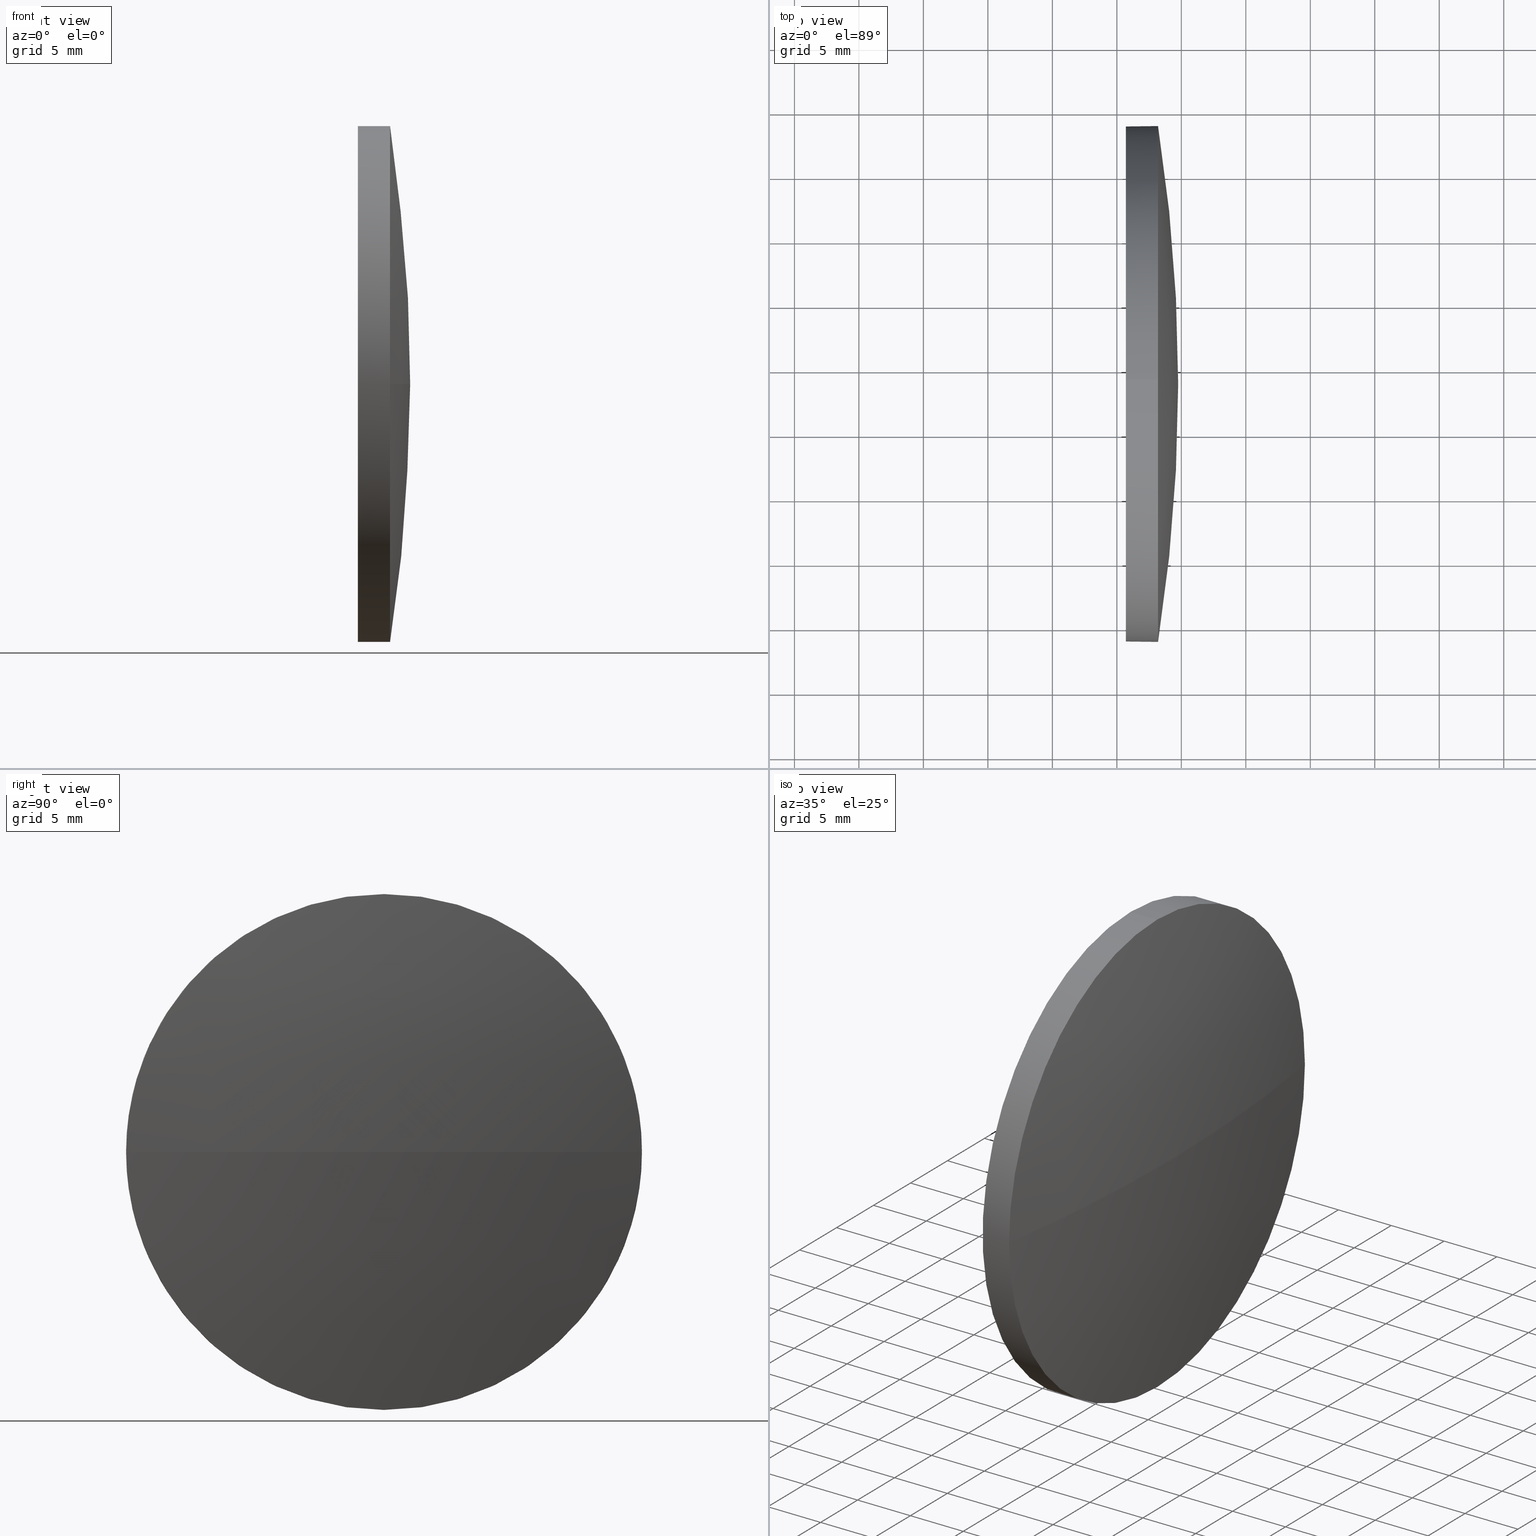
[diagram: canonical four-view strip — front | top / right | iso, engineering-drawing reading convention]
A machine part, canonical four-view strip (front | top / right | iso — engineering-drawing reading convention). The complete STEP part file that produces these views, byte-faithful:
ISO-10303-21;
HEADER;
FILE_DESCRIPTION (( 'STEP AP214' ),
    '1' );
FILE_NAME ('100234.STEP',
    '2019-05-28T05:46:53',
    ( '' ),
    ( '' ),
    'SwSTEP 2.0',
    'SolidWorks 2016',
    '' );
FILE_SCHEMA (( 'AUTOMOTIVE_DESIGN' ));
ENDSEC;

DATA;
#1 = ORIENTED_EDGE ( 'NONE', *, *, #70, .T. ) ;
#2 = ADVANCED_FACE ( 'NONE', ( #153 ), #62, .F. ) ;
#3 = AXIS2_PLACEMENT_3D ( 'NONE', #123, #30, #113 ) ;
#4 = ORIENTED_EDGE ( 'NONE', *, *, #48, .T. ) ;
#5 = CARTESIAN_POINT ( 'NONE',  ( 393.1958291310484700, 28.77305965944879100, 0.0000000000000000000 ) ) ;
#6 = CARTESIAN_POINT ( 'NONE',  ( 265.7707009259203200, 28.77305965944876200, 0.0000000000000000000 ) ) ;
#7 = ORIENTED_EDGE ( 'NONE', *, *, #58, .T. ) ;
#8 = DIRECTION ( 'NONE',  ( 0.0000000000000000000, 1.000000000000000000, 0.0000000000000000000 ) ) ;
#9 = CARTESIAN_POINT ( 'NONE',  ( 0.0000000000000000000, 0.0000000000000000000, 0.0000000000000000000 ) ) ;
#10 = CIRCLE ( 'NONE', #114, 20.00000000000000400 ) ;
#11 = APPLICATION_PROTOCOL_DEFINITION ( 'draft international standard', 'automotive_design', 1998, #39 ) ;
#12 = PRODUCT_DEFINITION_FORMATION_WITH_SPECIFIED_SOURCE ( '�κ�', '', #105, .NOT_KNOWN. ) ;
#13 = EDGE_CURVE ( 'NONE', #117, #54, #173, .T. ) ;
#14 = SURFACE_STYLE_FILL_AREA ( #160 ) ;
#15 = PRESENTATION_STYLE_ASSIGNMENT (( #56 ) ) ;
#16 = CARTESIAN_POINT ( 'NONE',  ( 393.1958291310484700, 28.77305965944879100, 0.0000000000000000000 ) ) ;
#17 = ORIENTED_EDGE ( 'NONE', *, *, #26, .F. ) ;
#18 = FACE_OUTER_BOUND ( 'NONE', #81, .T. ) ;
#19 = DIRECTION ( 'NONE',  ( 0.0000000000000000000, 0.0000000000000000000, 1.000000000000000000 ) ) ;
#20 = SURFACE_STYLE_USAGE ( .BOTH. , #53 ) ;
#21 = ORIENTED_EDGE ( 'NONE', *, *, #129, .F. ) ;
#22 = CARTESIAN_POINT ( 'NONE',  ( 394.7558291310484700, 28.77305965944876900, 0.0000000000000000000 ) ) ;
#23 = ADVANCED_BREP_SHAPE_REPRESENTATION ( '100234', ( #115, #104 ), #136 ) ;
#24 = DIRECTION ( 'NONE',  ( -1.000000000000000000, -0.0000000000000000000, -0.0000000000000000000 ) ) ;
#25 = CARTESIAN_POINT ( 'NONE',  ( 265.7707009259203200, 28.77305965944876200, 0.0000000000000000000 ) ) ;
#26 = EDGE_CURVE ( 'NONE', #132, #162, #126, .T. ) ;
#27 = CARTESIAN_POINT ( 'NONE',  ( 390.6958291310484700, 28.77305965944879100, 0.0000000000000000000 ) ) ;
#28 = PRESENTATION_LAYER_ASSIGNMENT (  '', '', ( #40 ) ) ;
#29 =( NAMED_UNIT ( * ) SI_UNIT ( $, .STERADIAN. ) SOLID_ANGLE_UNIT ( ) );
#30 = DIRECTION ( 'NONE',  ( 0.0000000000000000000, 1.224646799147353200E-016, -1.000000000000000000 ) ) ;
#31 = ORIENTED_EDGE ( 'NONE', *, *, #168, .F. ) ;
#32 =( GEOMETRIC_REPRESENTATION_CONTEXT ( 3 ) GLOBAL_UNCERTAINTY_ASSIGNED_CONTEXT ( ( #128 ) ) GLOBAL_UNIT_ASSIGNED_CONTEXT ( ( #95, #52, #38 ) ) REPRESENTATION_CONTEXT ( 'NONE', 'WORKASPACE' ) );
#33 = ORIENTED_EDGE ( 'NONE', *, *, #168, .T. ) ;
#34 = CIRCLE ( 'NONE', #186, 20.00000000000000400 ) ;
#35 = DIRECTION ( 'NONE',  ( -1.000000000000000000, -0.0000000000000000000, -0.0000000000000000000 ) ) ;
#36 = AXIS2_PLACEMENT_3D ( 'NONE', #137, #158, #74 ) ;
#37 = DIRECTION ( 'NONE',  ( 0.0000000000000000000, 0.0000000000000000000, 1.000000000000000000 ) ) ;
#38 =( NAMED_UNIT ( * ) SI_UNIT ( $, .STERADIAN. ) SOLID_ANGLE_UNIT ( ) );
#39 = APPLICATION_CONTEXT ( 'automotive_design' ) ;
#40 = STYLED_ITEM ( 'NONE', ( #144 ), #115 ) ;
#41 = DIRECTION ( 'NONE',  ( 0.0000000000000000000, 0.0000000000000000000, 1.000000000000000000 ) ) ;
#42 = ORIENTED_EDGE ( 'NONE', *, *, #172, .T. ) ;
#43 = MECHANICAL_DESIGN_GEOMETRIC_PRESENTATION_REPRESENTATION (  '', ( #40 ), #32 ) ;
#44 = ORIENTED_EDGE ( 'NONE', *, *, #13, .T. ) ;
#45 = VECTOR ( 'NONE', #35, 1000.000000000000000 ) ;
#46 = PRESENTATION_LAYER_ASSIGNMENT (  '', '', ( #147 ) ) ;
#47 = ADVANCED_FACE ( 'NONE', ( #131 ), #71, .T. ) ;
#48 = EDGE_CURVE ( 'NONE', #91, #132, #34, .T. ) ;
#49 = CIRCLE ( 'NONE', #86, 20.00000000000000400 ) ;
#50 = DIRECTION ( 'NONE',  ( -0.0000000000000000000, 0.0000000000000000000, 1.000000000000000000 ) ) ;
#51 = CARTESIAN_POINT ( 'NONE',  ( 386.7308755200624500, 28.77305965944879100, 0.0000000000000000000 ) ) ;
#52 =( NAMED_UNIT ( * ) PLANE_ANGLE_UNIT ( ) SI_UNIT ( $, .RADIAN. ) );
#53 = SURFACE_SIDE_STYLE ('',( #14 ) ) ;
#54 = VERTEX_POINT ( 'NONE', #61 ) ;
#55 = PRODUCT_CONTEXT ( 'NONE', #69, 'mechanical' ) ;
#56 = SURFACE_STYLE_USAGE ( .BOTH. , #145 ) ;
#57 = COLOUR_RGB ( '',1.000000000000000000, 1.000000000000000000, 1.000000000000000000 ) ;
#58 = EDGE_CURVE ( 'NONE', #162, #54, #10, .T. ) ;
#59 = VERTEX_POINT ( 'NONE', #93 ) ;
#60 = FACE_OUTER_BOUND ( 'NONE', #73, .T. ) ;
#61 = CARTESIAN_POINT ( 'NONE',  ( 393.1958291310484700, 48.77305965944879800, 0.0000000000000000000 ) ) ;
#62 = PLANE ( 'NONE',  #36 ) ;
#63 = ORIENTED_EDGE ( 'NONE', *, *, #48, .F. ) ;
#64 = CYLINDRICAL_SURFACE ( 'NONE', #77, 20.00000000000000400 ) ;
#65 = DIRECTION ( 'NONE',  ( 0.0000000000000000000, 0.0000000000000000000, 1.000000000000000000 ) ) ;
#66 = PRODUCT_RELATED_PRODUCT_CATEGORY ( 'part', '', ( #105 ) ) ;
#67 = DIRECTION ( 'NONE',  ( -1.000000000000000000, -0.0000000000000000000, -0.0000000000000000000 ) ) ;
#68 = AXIS2_PLACEMENT_3D ( 'NONE', #150, #80, #8 ) ;
#69 = APPLICATION_CONTEXT ( 'automotive_design' ) ;
#70 = EDGE_CURVE ( 'NONE', #156, #59, #139, .T. ) ;
#71 = CYLINDRICAL_SURFACE ( 'NONE', #154, 20.00000000000000400 ) ;
#72 = ADVANCED_FACE ( 'NONE', ( #18 ), #64, .T. ) ;
#73 = EDGE_LOOP ( 'NONE', ( #130, #42, #63, #21 ) ) ;
#74 = DIRECTION ( 'NONE',  ( 0.0000000000000000000, 0.0000000000000000000, -1.000000000000000000 ) ) ;
#75 = PRODUCT_DEFINITION_SHAPE ( 'NONE', 'NONE',  #90 ) ;
#76 = DIRECTION ( 'NONE',  ( -1.000000000000000000, -0.0000000000000000000, -0.0000000000000000000 ) ) ;
#77 = AXIS2_PLACEMENT_3D ( 'NONE', #141, #110, #79 ) ;
#78 = CARTESIAN_POINT ( 'NONE',  ( 393.1958291310484700, 28.77305965944879100, 20.00000000000000400 ) ) ;
#79 = DIRECTION ( 'NONE',  ( 0.0000000000000000000, 0.0000000000000000000, 1.000000000000000000 ) ) ;
#80 = DIRECTION ( 'NONE',  ( -0.0000000000000000000, 0.0000000000000000000, -1.000000000000000000 ) ) ;
#81 = EDGE_LOOP ( 'NONE', ( #111, #89, #102, #31, #7 ) ) ;
#82 = DIRECTION ( 'NONE',  ( -1.000000000000000000, -0.0000000000000000000, -0.0000000000000000000 ) ) ;
#83 =( LENGTH_UNIT ( ) NAMED_UNIT ( * ) SI_UNIT ( .MILLI., .METRE. ) );
#84 = EDGE_LOOP ( 'NONE', ( #166, #4, #96, #33, #120 ) ) ;
#85 = ADVANCED_FACE ( 'NONE', ( #60 ), #163, .T. ) ;
#86 = AXIS2_PLACEMENT_3D ( 'NONE', #182, #180, #112 ) ;
#87 = ORIENTED_EDGE ( 'NONE', *, *, #58, .F. ) ;
#88 = CIRCLE ( 'NONE', #3, 128.9851282051281500 ) ;
#89 = ORIENTED_EDGE ( 'NONE', *, *, #146, .T. ) ;
#90 = PRODUCT_DEFINITION ( 'δ֪', '', #12, #179 ) ;
#91 = VERTEX_POINT ( 'NONE', #125 ) ;
#92 = CIRCLE ( 'NONE', #185, 20.00000000000000400 ) ;
#93 = CARTESIAN_POINT ( 'NONE',  ( 390.6958291310484700, 28.77305965944879100, 20.00000000000000400 ) ) ;
#94 = FILL_AREA_STYLE_COLOUR ( '', #57 ) ;
#95 =( LENGTH_UNIT ( ) NAMED_UNIT ( * ) SI_UNIT ( .MILLI., .METRE. ) );
#96 = ORIENTED_EDGE ( 'NONE', *, *, #26, .T. ) ;
#97 =( NAMED_UNIT ( * ) SI_UNIT ( $, .STERADIAN. ) SOLID_ANGLE_UNIT ( ) );
#98 =( NAMED_UNIT ( * ) PLANE_ANGLE_UNIT ( ) SI_UNIT ( $, .RADIAN. ) );
#99 = EDGE_LOOP ( 'NONE', ( #100, #44, #87, #17 ) ) ;
#100 = ORIENTED_EDGE ( 'NONE', *, *, #172, .F. ) ;
#101 = AXIS2_PLACEMENT_3D ( 'NONE', #5, #176, #19 ) ;
#102 = ORIENTED_EDGE ( 'NONE', *, *, #183, .F. ) ;
#103 = LINE ( 'NONE', #121, #45 ) ;
#104 = AXIS2_PLACEMENT_3D ( 'NONE', #9, #184, #127 ) ;
#105 = PRODUCT ( '100234', '100234', '', ( #55 ) ) ;
#106 = UNCERTAINTY_MEASURE_WITH_UNIT (LENGTH_MEASURE( 1.000000000000000100E-005 ), #143, 'distance_accuracy_value', 'NONE');
#107 = COLOUR_RGB ( '',1.000000000000000000, 1.000000000000000000, 1.000000000000000000 ) ;
#108 = CARTESIAN_POINT ( 'NONE',  ( 390.6958291310484700, 28.77305965944879400, -20.00000000000000400 ) ) ;
#109 = CARTESIAN_POINT ( 'NONE',  ( 386.7308755200624500, 28.77305965944879400, -20.00000000000000400 ) ) ;
#110 = DIRECTION ( 'NONE',  ( -1.000000000000000000, -0.0000000000000000000, -0.0000000000000000000 ) ) ;
#111 = ORIENTED_EDGE ( 'NONE', *, *, #129, .T. ) ;
#112 = DIRECTION ( 'NONE',  ( 0.0000000000000000000, 0.0000000000000000000, 1.000000000000000000 ) ) ;
#113 = DIRECTION ( 'NONE',  ( 0.0000000000000000000, 1.000000000000000000, 1.224646799147353200E-016 ) ) ;
#114 = AXIS2_PLACEMENT_3D ( 'NONE', #177, #82, #65 ) ;
#115 = MANIFOLD_SOLID_BREP ( '��ת1', #135 ) ;
#116 = FILL_AREA_STYLE ('',( #94 ) ) ;
#117 = VERTEX_POINT ( 'NONE', #22 ) ;
#118 = DIRECTION ( 'NONE',  ( -1.000000000000000000, -0.0000000000000000000, -0.0000000000000000000 ) ) ;
#119 = DIRECTION ( 'NONE',  ( 1.000000000000000000, 0.0000000000000000000, 0.0000000000000000000 ) ) ;
#120 = ORIENTED_EDGE ( 'NONE', *, *, #70, .F. ) ;
#121 = CARTESIAN_POINT ( 'NONE',  ( 386.7308755200624500, 28.77305965944879100, 20.00000000000000400 ) ) ;
#122 = SPHERICAL_SURFACE ( 'NONE', #149, 128.9851282051281500 ) ;
#123 = CARTESIAN_POINT ( 'NONE',  ( 265.7707009259203200, 28.77305965944876200, 0.0000000000000000000 ) ) ;
#124 = DIRECTION ( 'NONE',  ( 0.0000000000000000000, 0.0000000000000000000, 1.000000000000000000 ) ) ;
#125 = CARTESIAN_POINT ( 'NONE',  ( 393.1958291310484700, 28.77305965944879400, -20.00000000000000400 ) ) ;
#126 = CIRCLE ( 'NONE', #101, 20.00000000000000400 ) ;
#127 = DIRECTION ( 'NONE',  ( 1.000000000000000000, 0.0000000000000000000, 0.0000000000000000000 ) ) ;
#128 = UNCERTAINTY_MEASURE_WITH_UNIT (LENGTH_MEASURE( 1.000000000000000100E-005 ), #95, 'distance_accuracy_value', 'NONE');
#129 = EDGE_CURVE ( 'NONE', #54, #91, #49, .T. ) ;
#130 = ORIENTED_EDGE ( 'NONE', *, *, #13, .F. ) ;
#131 = FACE_OUTER_BOUND ( 'NONE', #84, .T. ) ;
#132 = VERTEX_POINT ( 'NONE', #159 ) ;
#133 = LINE ( 'NONE', #109, #167 ) ;
#134 = ADVANCED_FACE ( 'NONE', ( #157 ), #122, .T. ) ;
#135 = CLOSED_SHELL ( 'NONE', ( #72, #85, #134, #47, #2 ) ) ;
#136 =( GEOMETRIC_REPRESENTATION_CONTEXT ( 3 ) GLOBAL_UNCERTAINTY_ASSIGNED_CONTEXT ( ( #106 ) ) GLOBAL_UNIT_ASSIGNED_CONTEXT ( ( #143, #98, #97 ) ) REPRESENTATION_CONTEXT ( 'NONE', 'WORKASPACE' ) );
#137 = CARTESIAN_POINT ( 'NONE',  ( 390.6958291310484700, 28.77305965944879100, 0.0000000000000000000 ) ) ;
#138 = AXIS2_PLACEMENT_3D ( 'NONE', #6, #50, #119 ) ;
#139 = CIRCLE ( 'NONE', #164, 20.00000000000000400 ) ;
#140 = FILL_AREA_STYLE_COLOUR ( '', #107 ) ;
#141 = CARTESIAN_POINT ( 'NONE',  ( 386.7308755200624500, 28.77305965944879100, 0.0000000000000000000 ) ) ;
#142 = DIRECTION ( 'NONE',  ( -0.0000000000000000000, 0.0000000000000000000, -1.000000000000000000 ) ) ;
#143 =( LENGTH_UNIT ( ) NAMED_UNIT ( * ) SI_UNIT ( .MILLI., .METRE. ) );
#144 = PRESENTATION_STYLE_ASSIGNMENT (( #20 ) ) ;
#145 = SURFACE_SIDE_STYLE ('',( #178 ) ) ;
#146 = EDGE_CURVE ( 'NONE', #91, #156, #133, .T. ) ;
#147 = STYLED_ITEM ( 'NONE', ( #15 ), #23 ) ;
#148 = DIRECTION ( 'NONE',  ( 0.0000000000000000000, 1.000000000000000000, 0.0000000000000000000 ) ) ;
#149 = AXIS2_PLACEMENT_3D ( 'NONE', #25, #142, #148 ) ;
#150 = CARTESIAN_POINT ( 'NONE',  ( 265.7707009259203200, 28.77305965944876200, 0.0000000000000000000 ) ) ;
#151 = EDGE_LOOP ( 'NONE', ( #155, #1 ) ) ;
#152 = DIRECTION ( 'NONE',  ( -1.000000000000000000, -0.0000000000000000000, -0.0000000000000000000 ) ) ;
#153 = FACE_OUTER_BOUND ( 'NONE', #151, .T. ) ;
#154 = AXIS2_PLACEMENT_3D ( 'NONE', #51, #76, #174 ) ;
#155 = ORIENTED_EDGE ( 'NONE', *, *, #183, .T. ) ;
#156 = VERTEX_POINT ( 'NONE', #108 ) ;
#157 = FACE_OUTER_BOUND ( 'NONE', #99, .T. ) ;
#158 = DIRECTION ( 'NONE',  ( 1.000000000000000000, 0.0000000000000000000, 0.0000000000000000000 ) ) ;
#159 = CARTESIAN_POINT ( 'NONE',  ( 393.1958291310484700, 8.773059659448762200, -2.449293598294706100E-015 ) ) ;
#160 = FILL_AREA_STYLE ('',( #140 ) ) ;
#161 =( NAMED_UNIT ( * ) PLANE_ANGLE_UNIT ( ) SI_UNIT ( $, .RADIAN. ) );
#162 = VERTEX_POINT ( 'NONE', #78 ) ;
#163 = SPHERICAL_SURFACE ( 'NONE', #68, 128.9851282051281500 ) ;
#164 = AXIS2_PLACEMENT_3D ( 'NONE', #181, #67, #37 ) ;
#165 = APPLICATION_PROTOCOL_DEFINITION ( 'draft international standard', 'automotive_design', 1998, #69 ) ;
#166 = ORIENTED_EDGE ( 'NONE', *, *, #146, .F. ) ;
#167 = VECTOR ( 'NONE', #24, 1000.000000000000000 ) ;
#168 = EDGE_CURVE ( 'NONE', #162, #59, #103, .T. ) ;
#169 = SHAPE_DEFINITION_REPRESENTATION ( #75, #23 ) ;
#170 = UNCERTAINTY_MEASURE_WITH_UNIT (LENGTH_MEASURE( 1.000000000000000100E-005 ), #83, 'distance_accuracy_value', 'NONE');
#171 =( GEOMETRIC_REPRESENTATION_CONTEXT ( 3 ) GLOBAL_UNCERTAINTY_ASSIGNED_CONTEXT ( ( #170 ) ) GLOBAL_UNIT_ASSIGNED_CONTEXT ( ( #83, #161, #29 ) ) REPRESENTATION_CONTEXT ( 'NONE', 'WORKASPACE' ) );
#172 = EDGE_CURVE ( 'NONE', #117, #132, #88, .T. ) ;
#173 = CIRCLE ( 'NONE', #138, 128.9851282051281500 ) ;
#174 = DIRECTION ( 'NONE',  ( 0.0000000000000000000, 0.0000000000000000000, 1.000000000000000000 ) ) ;
#175 = MECHANICAL_DESIGN_GEOMETRIC_PRESENTATION_REPRESENTATION (  '', ( #147 ), #171 ) ;
#176 = DIRECTION ( 'NONE',  ( -1.000000000000000000, -0.0000000000000000000, -0.0000000000000000000 ) ) ;
#177 = CARTESIAN_POINT ( 'NONE',  ( 393.1958291310484700, 28.77305965944879100, 0.0000000000000000000 ) ) ;
#178 = SURFACE_STYLE_FILL_AREA ( #116 ) ;
#179 = PRODUCT_DEFINITION_CONTEXT ( 'detailed design', #39, 'design' ) ;
#180 = DIRECTION ( 'NONE',  ( -1.000000000000000000, -0.0000000000000000000, -0.0000000000000000000 ) ) ;
#181 = CARTESIAN_POINT ( 'NONE',  ( 390.6958291310484700, 28.77305965944879100, 0.0000000000000000000 ) ) ;
#182 = CARTESIAN_POINT ( 'NONE',  ( 393.1958291310484700, 28.77305965944879100, 0.0000000000000000000 ) ) ;
#183 = EDGE_CURVE ( 'NONE', #59, #156, #92, .T. ) ;
#184 = DIRECTION ( 'NONE',  ( 0.0000000000000000000, 0.0000000000000000000, 1.000000000000000000 ) ) ;
#185 = AXIS2_PLACEMENT_3D ( 'NONE', #27, #152, #41 ) ;
#186 = AXIS2_PLACEMENT_3D ( 'NONE', #16, #118, #124 ) ;
ENDSEC;
END-ISO-10303-21;
